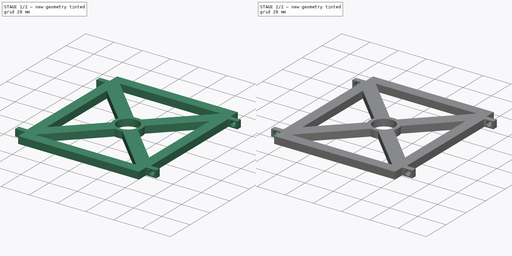
[diagram: build sequence overview — one tinted view per stage of 2, left to right]
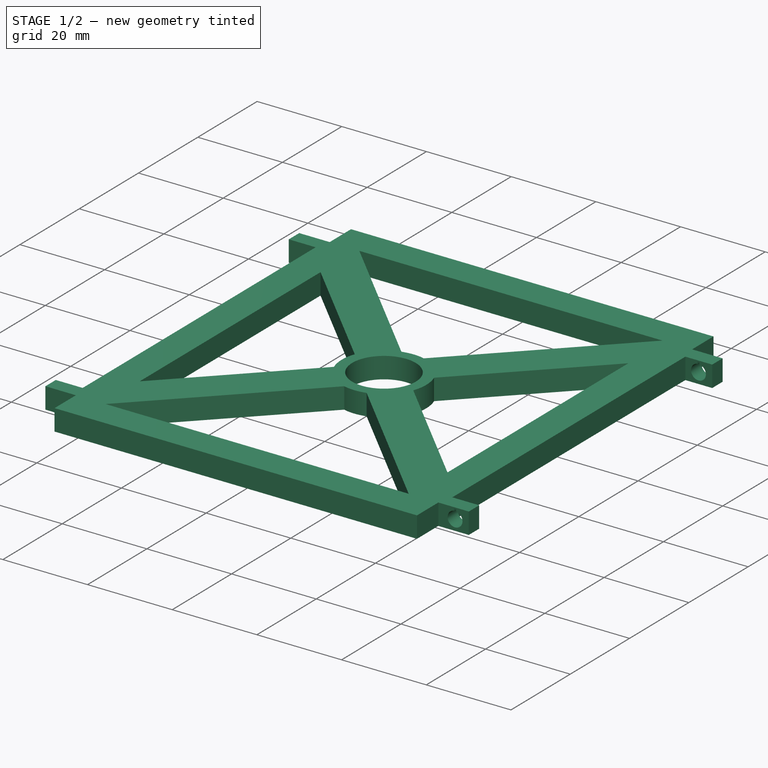
[diagram: stage 1 of 2 — iso view after this stage's code; geometry added in this stage tinted green]
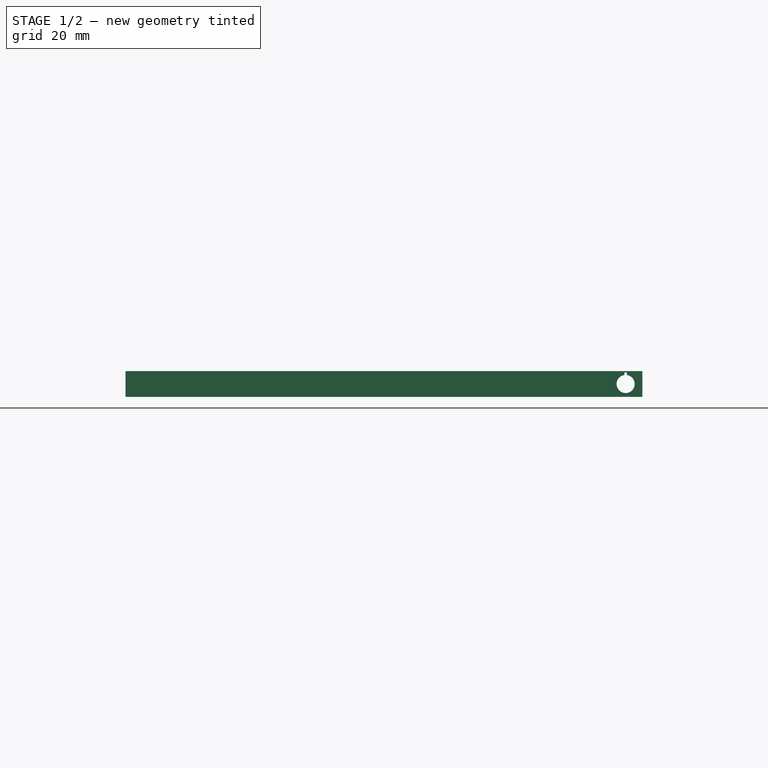
[diagram: stage 1 of 2 — front view after this stage's code; geometry added in this stage tinted green]
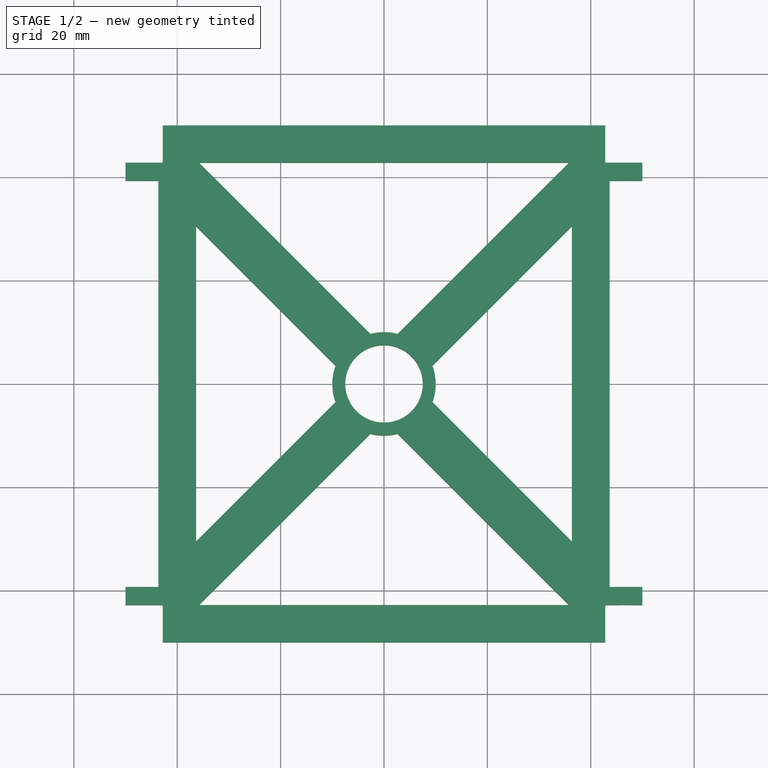
[diagram: stage 1 of 2 — top view after this stage's code; geometry added in this stage tinted green]
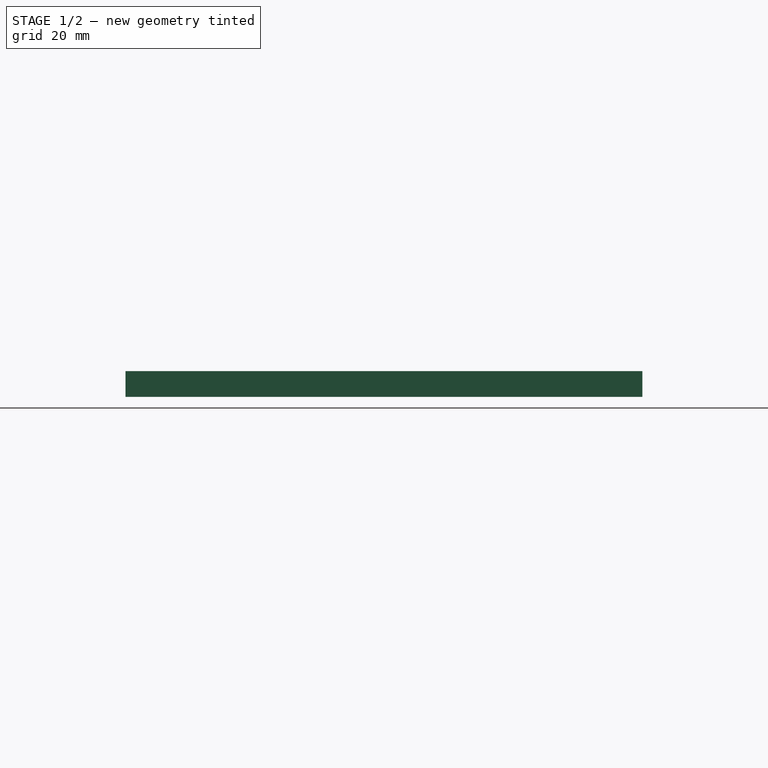
[diagram: stage 1 of 2 — right view after this stage's code; geometry added in this stage tinted green]
FCSTD DOCUMENT  (FreeCAD 0.21R33771 (Git))
Label: lid
License: All rights reserved
LicenseURL: http://en.wikipedia.org/wiki/All_rights_reserved
objects: Sketcher::SketchObject×2, PartDesign::Pad×1, PartDesign::Pocket×1, PartDesign::Fillet×1, PartDesign::PolarPattern×1, PartDesign::Body×1
note: 10 computed .brp shape members not serialized (recipe doc carries the construction recipe); baked Part::Feature solids carry a one-line shape summary decoded from their .brp

FEATURE [Sketcher::SketchObject] Sketch
  FullyConstrained = true
  MapMode = 5
  Support = -> [XY_Plane]
  sketch-geometry (37):
    g0: LineSegment StartX=-42.8 StartY=50 StartZ=0 EndX=-42.8 EndY=42.8 EndZ=0
    g1: LineSegment StartX=42.8 StartY=42.8 StartZ=0 EndX=42.8 EndY=50 EndZ=0
    g2: LineSegment StartX=-42.8 StartY=-42.8 StartZ=0 EndX=-42.8 EndY=-50 EndZ=0
    g3: LineSegment StartX=50 StartY=-42.8 StartZ=0 EndX=42.8 EndY=-42.8 EndZ=0
    g4: LineSegment StartX=42.8 StartY=-42.8 StartZ=0 EndX=42.8 EndY=-50 EndZ=0
    g5: LineSegment StartX=-42.8 StartY=-42.8 StartZ=0 EndX=-50 EndY=-42.8 EndZ=0
    g6: LineSegment StartX=-35.8 StartY=-42.8 StartZ=0 EndX=35.8 EndY=-42.8 EndZ=0
    g7: LineSegment StartX=36.35 StartY=30.5 StartZ=0 EndX=36.35 EndY=-30.5 EndZ=0
    g8: LineSegment StartX=-35.8 StartY=42.8 StartZ=0 EndX=35.8 EndY=42.8 EndZ=0
    g9: LineSegment StartX=-36.35 StartY=30.5 StartZ=0 EndX=-36.35 EndY=-30.5 EndZ=0
    g10: LineSegment StartX=-42.8 StartY=42.8 StartZ=0 EndX=-50 EndY=42.8 EndZ=0
    g11: Circle CenterX=0 CenterY=0 CenterZ=0 NormalX=0 NormalY=0 NormalZ=1 AngleXU=0 Radius=7.5
    g12: LineSegment StartX=-36.35 StartY=-30.5 StartZ=0 EndX=-9.36273 EndY=-3.51273 EndZ=0
    g13: LineSegment StartX=-2.6441 StartY=-9.6441 StartZ=0 EndX=-35.8 EndY=-42.8 EndZ=0
    g14: LineSegment StartX=2.6441 StartY=-9.6441 StartZ=0 EndX=35.8 EndY=-42.8 EndZ=0
    g15: LineSegment StartX=9.36273 StartY=-3.51273 StartZ=0 EndX=36.35 EndY=-30.5 EndZ=0
    g16: LineSegment StartX=36.35 StartY=30.5 StartZ=0 EndX=9.36273 EndY=3.51273 EndZ=0
    g17: LineSegment StartX=35.8 StartY=42.8 StartZ=0 EndX=2.6441 EndY=9.6441 EndZ=0
    g18: LineSegment StartX=-35.8 StartY=42.8 StartZ=0 EndX=-2.6441 EndY=9.6441 EndZ=0
    g19: LineSegment StartX=-36.35 StartY=30.5 StartZ=0 EndX=-9.36273 EndY=3.51273 EndZ=0
    g20: ArcOfCircle CenterX=0 CenterY=0 CenterZ=0 NormalX=0 NormalY=0 NormalZ=1 AngleXU=0 Radius=10 StartAngle=5.92425 EndAngle=6.64212
    g21: ArcOfCircle CenterX=0 CenterY=0 CenterZ=0 NormalX=0 NormalY=0 NormalZ=1 AngleXU=0 Radius=10 StartAngle=1.3032 EndAngle=1.83839
    g22: ArcOfCircle CenterX=0 CenterY=0 CenterZ=0 NormalX=0 NormalY=0 NormalZ=1 AngleXU=0 Radius=10 StartAngle=2.78266 EndAngle=3.50052
    g23: ArcOfCircle CenterX=0 CenterY=0 CenterZ=0 NormalX=0 NormalY=0 NormalZ=1 AngleXU=0 Radius=10 StartAngle=4.4448 EndAngle=4.97998
    g24: LineSegment StartX=-42.8 StartY=-50 StartZ=0 EndX=42.8 EndY=-50 EndZ=0
    g25: LineSegment StartX=50 StartY=42.8 StartZ=0 EndX=50 EndY=39.3 EndZ=0
    g26: LineSegment StartX=42.8 StartY=42.8 StartZ=0 EndX=50 EndY=42.8 EndZ=0
    g27: LineSegment StartX=-42.8 StartY=50 StartZ=0 EndX=42.8 EndY=50 EndZ=0
    g28: LineSegment StartX=-50 StartY=42.8 StartZ=0 EndX=-50 EndY=39.3 EndZ=0
    g29: LineSegment StartX=-50 StartY=-39.3 StartZ=0 EndX=-50 EndY=-42.8 EndZ=0
    g30: LineSegment StartX=50 StartY=-39.3 StartZ=0 EndX=50 EndY=-42.8 EndZ=0
    g31: LineSegment StartX=43.65 StartY=39.3 StartZ=0 EndX=50 EndY=39.3 EndZ=0
    g32: LineSegment StartX=50 StartY=-39.3 StartZ=0 EndX=43.65 EndY=-39.3 EndZ=0
    g33: LineSegment StartX=43.65 StartY=39.3 StartZ=0 EndX=43.65 EndY=-39.3 EndZ=0
    g34: LineSegment StartX=-50 StartY=39.3 StartZ=0 EndX=-43.65 EndY=39.3 EndZ=0
    g35: LineSegment StartX=-50 StartY=-39.3 StartZ=0 EndX=-43.65 EndY=-39.3 EndZ=0
    g36: LineSegment StartX=-43.65 StartY=-39.3 StartZ=0 EndX=-43.65 EndY=39.3 EndZ=0
  constraints (106):
    c: Vertical(g0)
    c: Vertical(g1)
    c: Vertical(g2)
    c: Coincident(g3,g4)
    c: Horizontal(g3)
    c: Vertical(g4)
    c: Equal(g1,g0)
    c: Equal(g1,g2)
    c: Equal(g1,g4)
    c: DistanceX(g0,g1) = 85.6
    c: Vertical(g0,g2)
    c: Coincident(g5,g2)
    c: Horizontal(g6)
    c: Vertical(g7)
    c: Horizontal(g8)
    c: Vertical(g9)
    c: Coincident(g10,g0)
    c: Horizontal(g10)
    c: Symmetric(g10,g5,g-1)
    c: Symmetric(g3,g5,g-2)
    c: Symmetric(g7,g9,g-2)
    c: Symmetric(g8,g6,g-1)
    c: DistanceX(g9,g7) = 72.7
    c: Coincident(g11,g-1)
    c: Diameter(g11) = 15
    c: Coincident(g12,g9)
    c: Coincident(g13,g6)
    c: Coincident(g14,g6)
    c: Coincident(g15,g7)
    c: Coincident(g16,g7)
    c: Coincident(g17,g8)
    c: Coincident(g18,g8)
    c: Coincident(g19,g9)
    c: Coincident(g20,g11)
    c: Coincident(g20,g15)
    c: Coincident(g20,g16)
    c: Coincident(g21,g11)
    c: Coincident(g21,g17)
    c: Coincident(g21,g18)
    c: Coincident(g22,g11)
    c: Coincident(g22,g19)
    c: Coincident(g22,g12)
    c: Coincident(g23,g11)
    c: Coincident(g23,g13)
    c: Coincident(g23,g14)
    c: Diameter(g22) = 20
    c: Equal(g22,g21)
    c: Equal(g21,g20)
    c: Equal(g21,g23)
    c: Angle(g6,g13) = 0.785398
    c: Angle(g14,g6) = 0.785398
    c: Parallel(g12,g13)
    c: Parallel(g14,g15)
    c: Parallel(g14,g19)
    c: Parallel(g13,g16)
    c: Parallel(g19,g18)
    c: Parallel(g16,g17)
    c: DistanceY(g9,g9) = 61
    c: Horizontal(g14,g13)
    c: Horizontal(g17,g18)
    c: Vertical(g16,g15)
    c: Vertical(g19,g12)
    c: Coincident(g24,g2)
    c: Coincident(g24,g4)
    c: Horizontal(g24)
    c: Vertical(g1,g4)
    c: Horizontal(g8,g0)
    c: Vertical(g25)
    c: Coincident(g26,g1)
    c: Coincident(g26,g25)
    c: Horizontal(g26)
    c: DistanceX(g26,g26) = 7.2
    c: Equal(g26,g1)
    c: Coincident(g27,g0)
    c: Coincident(g27,g1)
    c: Horizontal(g27)
    c: DistanceX(g0,g8) = 7
    c: Coincident(g28,g10)
    c: Vertical(g28)
    c: Coincident(g29,g5)
    c: Vertical(g29)
    c: Coincident(g30,g3)
    c: Vertical(g30)
    c: DistanceY(g30,g30) = 3.5
    c: Equal(g30,g25)
    c: Vertical(g25,g30)
    c: Coincident(g31,g25)
    c: Horizontal(g31)
    c: Coincident(g32,g30)
    c: Horizontal(g32)
    c: Coincident(g33,g31)
    c: Coincident(g33,g32)
    c: Vertical(g33)
    c: DistanceX(g32,g32) = 6.35
    c: Coincident(g34,g28)
    c: Horizontal(g34)
    c: Coincident(g35,g29)
    c: Horizontal(g35)
    c: Coincident(g36,g35)
    c: Coincident(g36,g34)
    c: Vertical(g36)
    c: DistanceY(g36,g36) = 78.6
    c: Equal(g30,g28)
    c: Equal(g30,g29)
    c: Equal(g32,g35)
    c: DistanceX(g8,g1) = 7
FEATURE [PartDesign::Pad] Pad
  Direction = (0,0,1)
  Length = 5
  Length2 = 10
  Profile = -> Sketch
  ReferenceAxis = -> Sketch [N_Axis]
  Type = 0
FEATURE [Sketcher::SketchObject] Sketch001
  FullyConstrained = true
  MapMode = 5
  Placement = pos=(0,-50,0) rot=(1,0,0;1.5708rad)
  Support = -> [Pad]
  sketch-geometry (4):
    g0: ArcOfCircle CenterX=46.75 CenterY=2.5 CenterZ=0 NormalX=0 NormalY=0 NormalZ=1 AngleXU=0 Radius=1.75 StartAngle=1.71414 EndAngle=7.71063
    g1: LineSegment StartX=46.5 StartY=4.23205 StartZ=0 EndX=46.5 EndY=4.73205 EndZ=0
    g2: LineSegment StartX=46.5 StartY=4.73205 StartZ=0 EndX=47 EndY=4.73205 EndZ=0
    g3: LineSegment StartX=47 StartY=4.73205 StartZ=0 EndX=47 EndY=4.23205 EndZ=0
  constraints (13):
    c: DistanceX(g-1,g0) = 46.75
    c: DistanceY(g-1,g0) = 2.5
    c: Diameter(g0) = 3.5
    c: Horizontal(g0,g0)
    c: Coincident(g1,g0)
    c: Vertical(g1)
    c: Coincident(g2,g1)
    c: Horizontal(g2)
    c: Coincident(g3,g2)
    c: Coincident(g3,g0)
    c: Vertical(g3)
    c: DistanceX(g2,g2) = 0.5
    c: DistanceY(g3,g3) = 0.5
FEATURE [PartDesign::Pocket] Pocket  label="screwholes"
  BaseFeature = -> Pad
  Direction = (0,1,-2e-16)
  Length = 5
  Length2 = 5
  Profile = -> Sketch001
  ReferenceAxis = -> Sketch001 [N_Axis]
  Type = 1
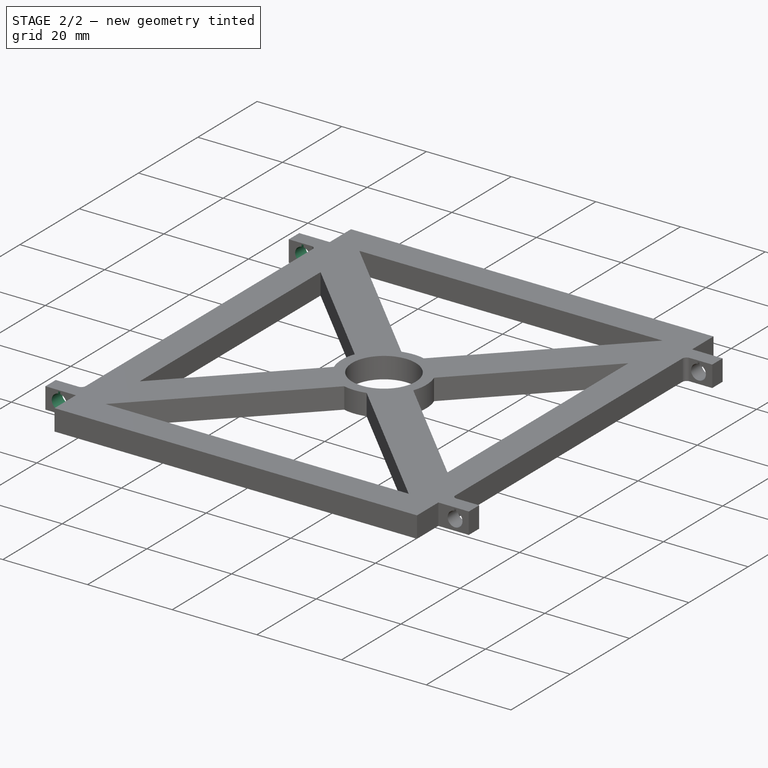
[diagram: stage 2 of 2 — iso view after this stage's code; geometry added in this stage tinted green]
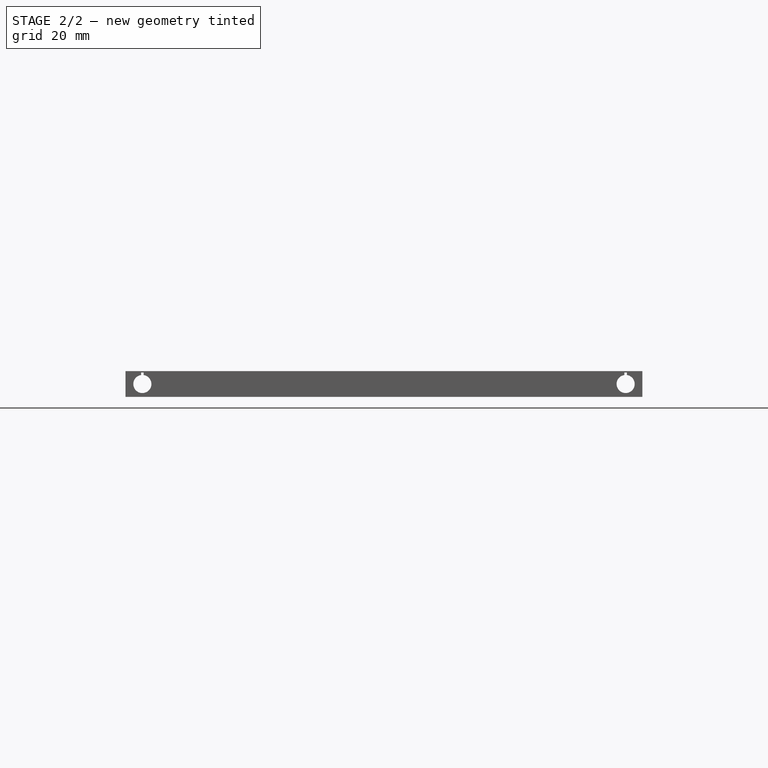
[diagram: stage 2 of 2 — front view after this stage's code; geometry added in this stage tinted green]
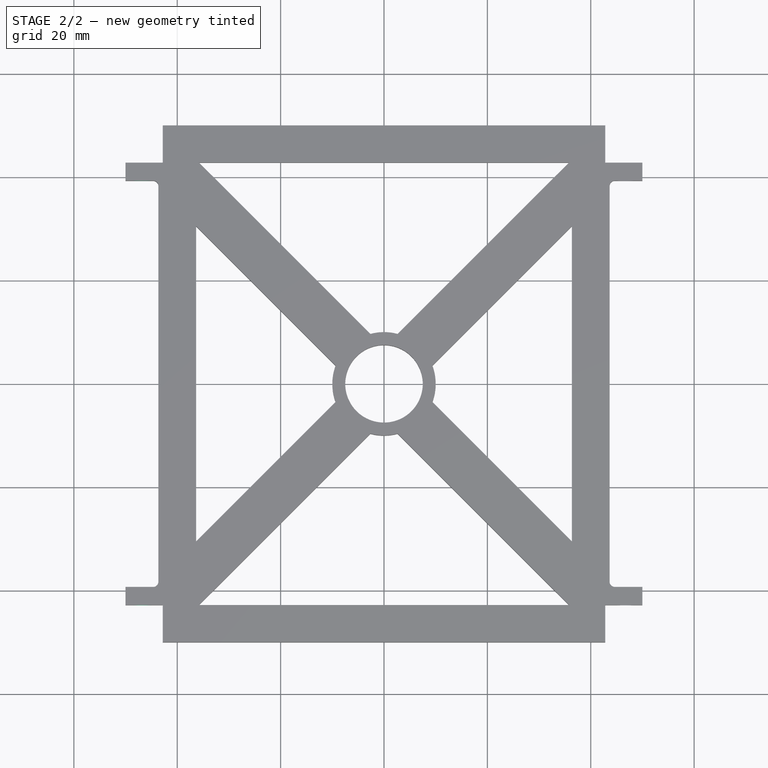
[diagram: stage 2 of 2 — top view after this stage's code; geometry added in this stage tinted green]
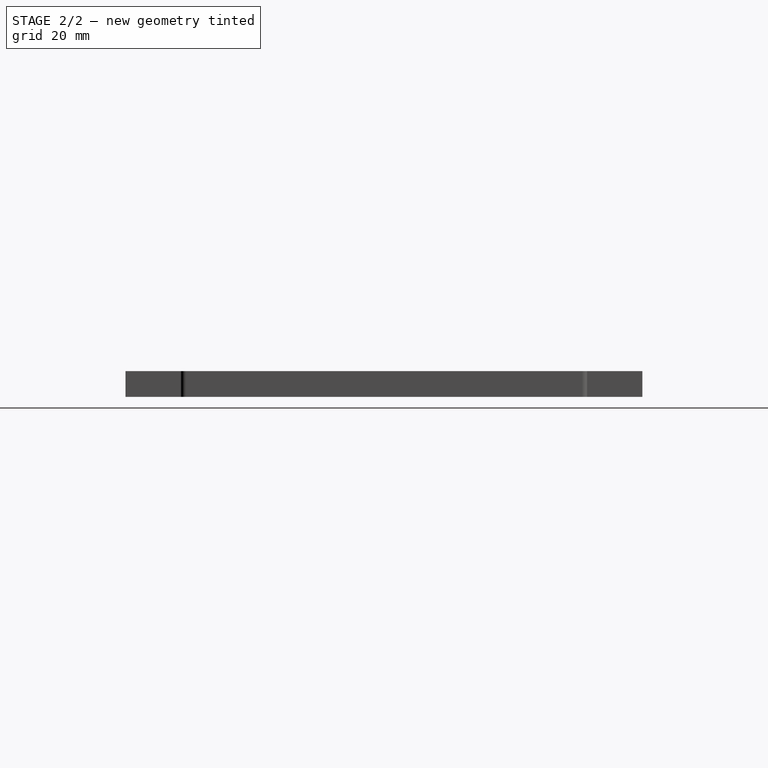
[diagram: stage 2 of 2 — right view after this stage's code; geometry added in this stage tinted green]
FEATURE [PartDesign::Fillet] Fillet
  Base = -> Pocket [Edge109,Edge114]
  BaseFeature = -> Pocket
  Radius = 1
  SupportTransform = false
  UseAllEdges = false
FEATURE [PartDesign::PolarPattern] PolarPattern
  Angle = 360
  Axis = -> Z_Axis
  BaseFeature = -> Fillet
  Occurrences = 2
  Originals = -> [Fillet,Pocket]
  Refine = true
FEATURE [PartDesign::Body] Body
  Group = -> [Sketch,Pad,Sketch001,Pocket,Fillet,PolarPattern]
  Origin = -> Origin
  Tip = -> PolarPattern
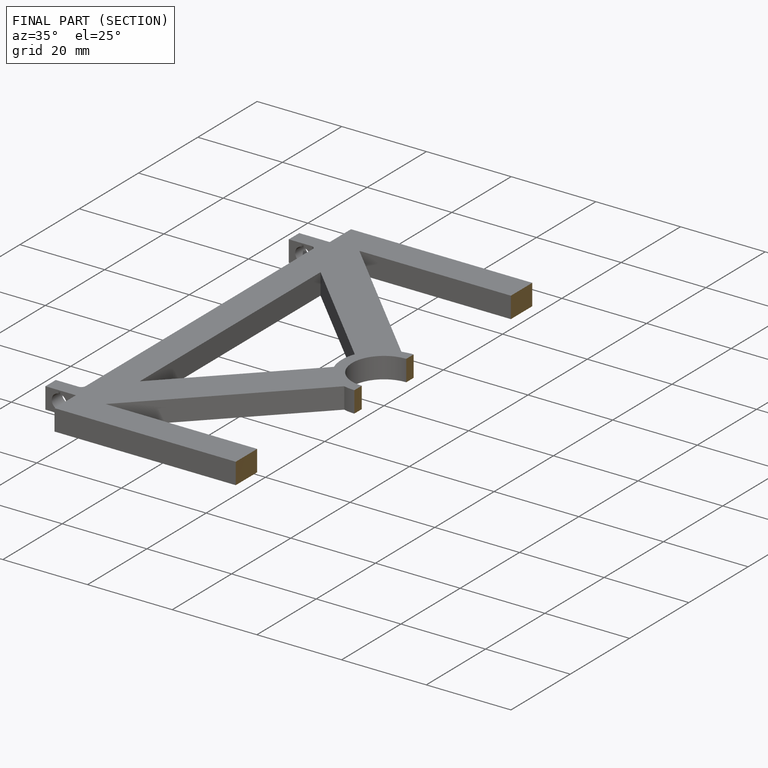
[diagram: finished part — half-section view (interior)]
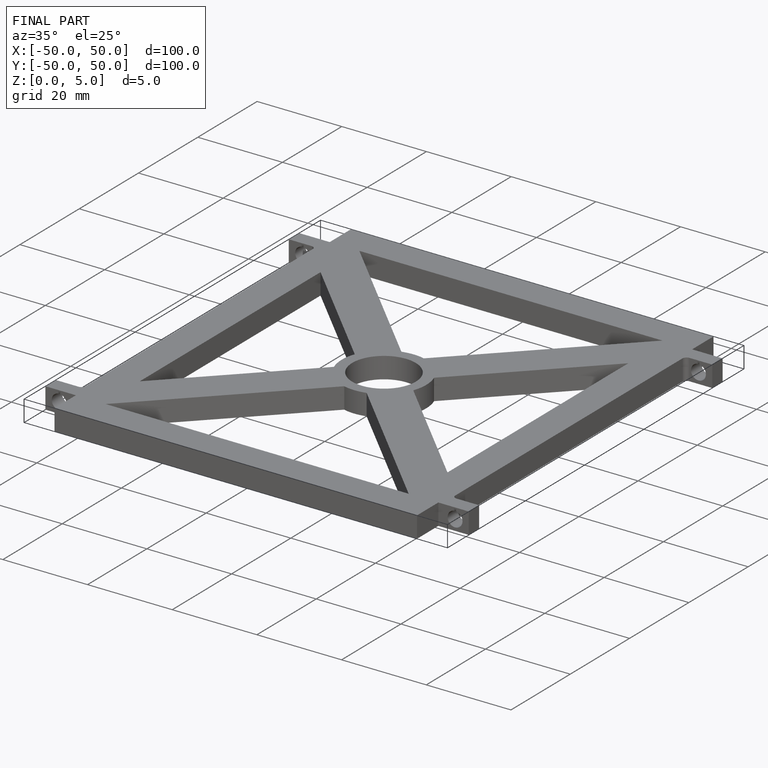
[diagram: finished part — iso view with bounding-box wireframe]
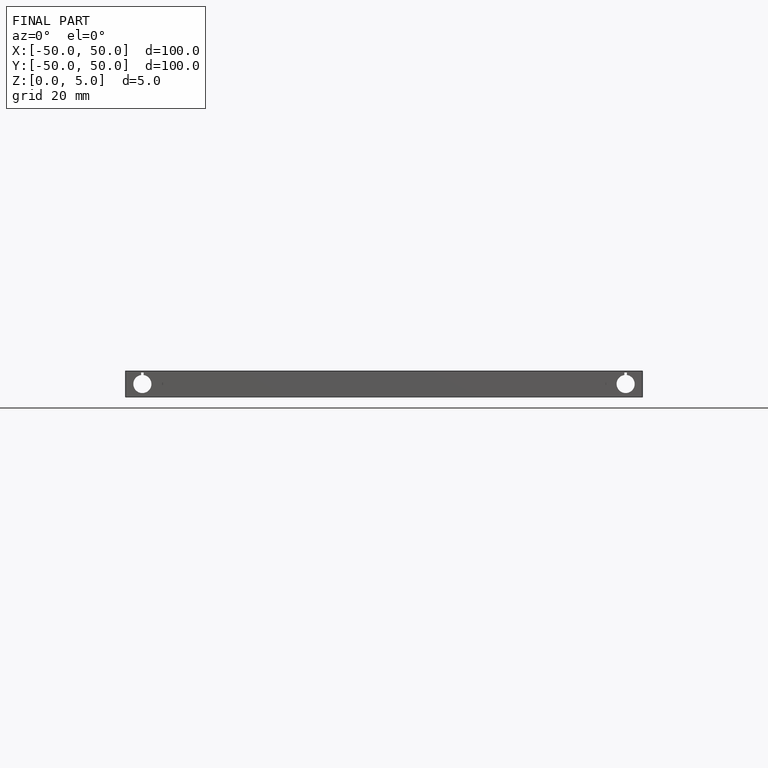
[diagram: finished part — front view with bounding-box wireframe]
